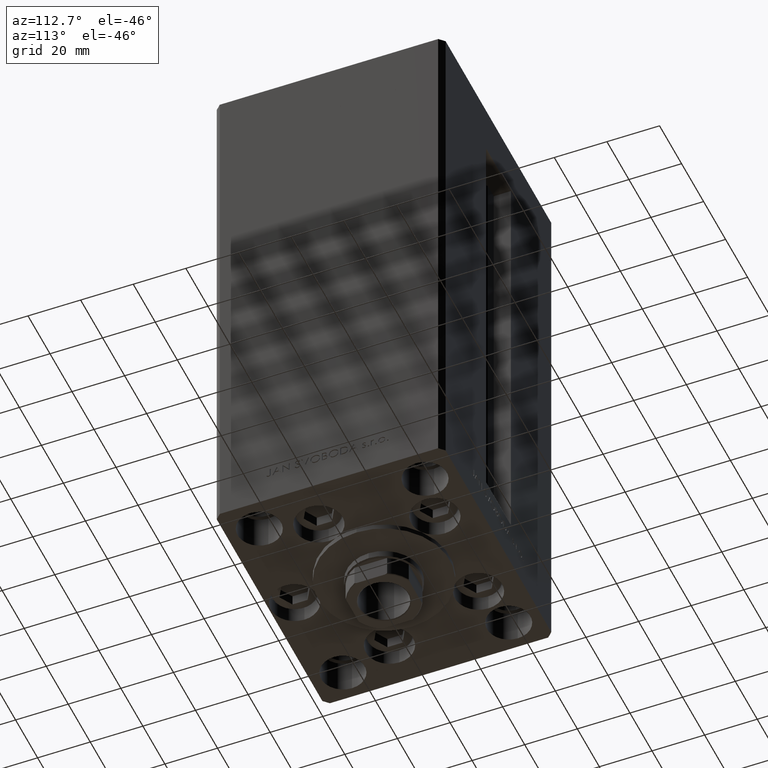
[diagram: clean part render]
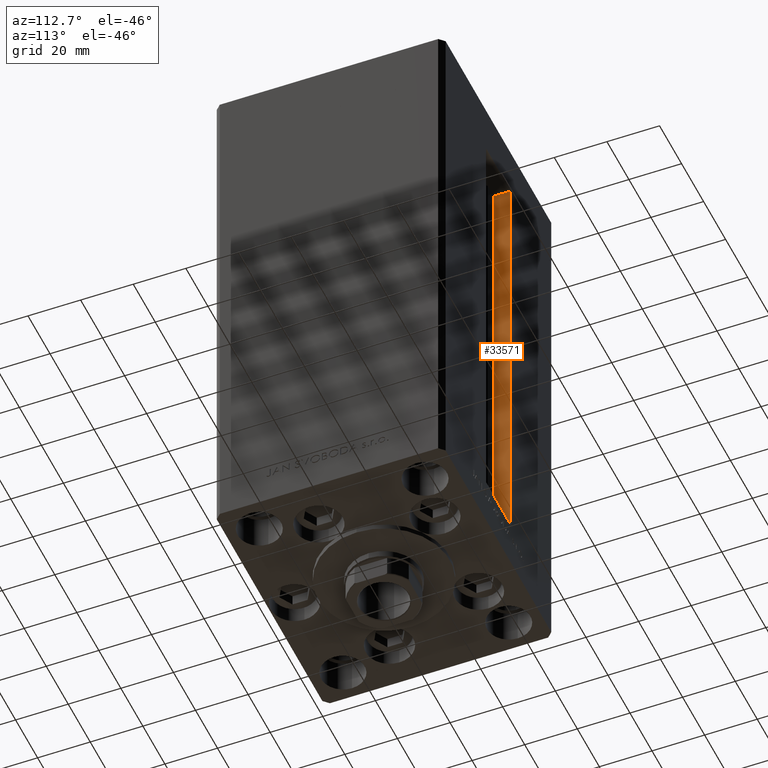
[diagram: same view with one face highlighted and labeled with its STEP entity id]
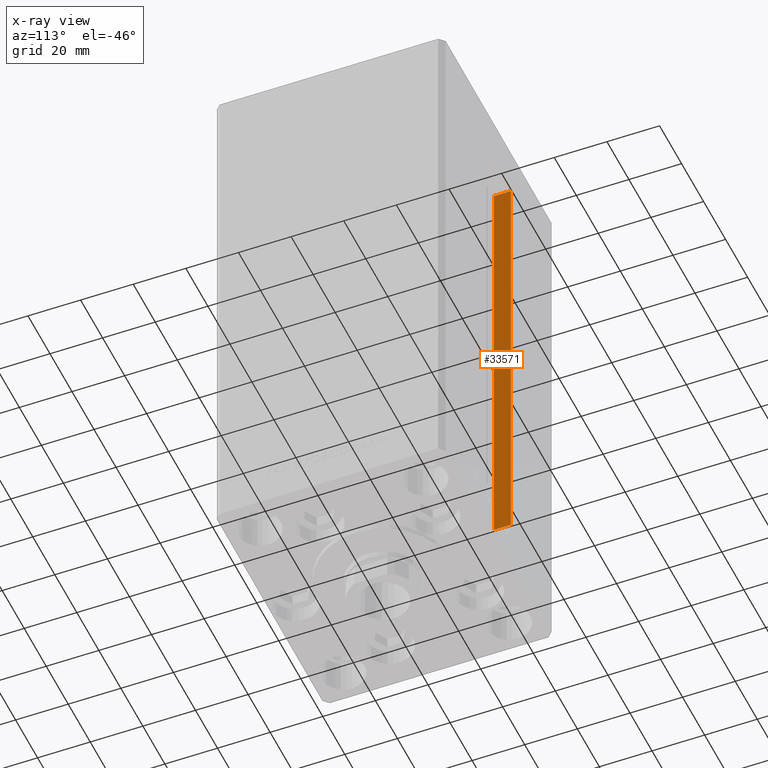
[diagram: x-ray of the same camera — body ghosted, the highlighted face saturated]
A machine part, auxiliary view. The second image highlights one B-rep face of the part: STEP entity #33571.
The next image is the same camera in x-ray: the body ghosted, the highlighted face saturated — about 0% of this face is hidden behind the body in this view.
In plain terms, the highlighted planar face has unit normal (-1, 0, 0).
Its self-contained STEP definition (entity closure, byte-faithful):
#324 = EDGE_CURVE ( 'NONE', #14315, #10342, #27190, .T. ) ;
#3522 = DIRECTION ( 'NONE',  ( 0.000000000000000000, 0.000000000000000000, 1.000000000000000000 ) ) ;
#4430 = EDGE_LOOP ( 'NONE', ( #24724, #4878, #26305, #28529 ) ) ;
#4878 = ORIENTED_EDGE ( 'NONE', *, *, #41995, .F. ) ;
#7042 = VECTOR ( 'NONE', #39192, 1000.000000000000000 ) ;
#8238 = DIRECTION ( 'NONE',  ( -1.000000000000000000, 0.000000000000000000, 0.000000000000000000 ) ) ;
#10342 = VERTEX_POINT ( 'NONE', #46484 ) ;
#10490 = CARTESIAN_POINT ( 'NONE',  ( -11.24999999999999822, 36.99999999999999289, 0.000000000000000000 ) ) ;
#12234 = CARTESIAN_POINT ( 'NONE',  ( -11.24999999999999822, 36.99999999999999289, 0.000000000000000000 ) ) ;
#14315 = VERTEX_POINT ( 'NONE', #26397 ) ;
#14429 = CARTESIAN_POINT ( 'NONE',  ( -11.24999999999999822, 43.50000000000000000, 0.000000000000000000 ) ) ;
#19286 = EDGE_CURVE ( 'NONE', #10342, #35992, #28006, .T. ) ;
#19603 = AXIS2_PLACEMENT_3D ( 'NONE', #38360, #8238, #3522 ) ;
#19909 = VECTOR ( 'NONE', #38373, 1000.000000000000000 ) ;
#20949 = EDGE_CURVE ( 'NONE', #27131, #35992, #40552, .T. ) ;
#23203 = FACE_OUTER_BOUND ( 'NONE', #4430, .T. ) ;
#24724 = ORIENTED_EDGE ( 'NONE', *, *, #324, .F. ) ;
#26305 = ORIENTED_EDGE ( 'NONE', *, *, #20949, .T. ) ;
#26397 = CARTESIAN_POINT ( 'NONE',  ( -11.24999999999999822, 36.99999999999999289, 0.000000000000000000 ) ) ;
#27131 = VERTEX_POINT ( 'NONE', #47175 ) ;
#27190 = LINE ( 'NONE', #12234, #19909 ) ;
#27732 = VECTOR ( 'NONE', #36576, 1000.000000000000000 ) ;
#28006 = LINE ( 'NONE', #46181, #7042 ) ;
#28529 = ORIENTED_EDGE ( 'NONE', *, *, #19286, .F. ) ;
#33387 = LINE ( 'NONE', #10490, #49230 ) ;
#33571 = ADVANCED_FACE ( 'NONE', ( #23203 ), #37618, .F. ) ;
#35992 = VERTEX_POINT ( 'NONE', #47064 ) ;
#36576 = DIRECTION ( 'NONE',  ( -0.000000000000000000, -0.000000000000000000, 1.000000000000000000 ) ) ;
#37618 = PLANE ( 'NONE',  #19603 ) ;
#38360 = CARTESIAN_POINT ( 'NONE',  ( -11.24999999999999822, 36.99999999999999289, 0.000000000000000000 ) ) ;
#38373 = DIRECTION ( 'NONE',  ( -0.000000000000000000, -0.000000000000000000, 1.000000000000000000 ) ) ;
#39192 = DIRECTION ( 'NONE',  ( 0.000000000000000000, 1.000000000000000000, 0.000000000000000000 ) ) ;
#40552 = LINE ( 'NONE', #14429, #27732 ) ;
#41075 = DIRECTION ( 'NONE',  ( -0.000000000000000000, -1.000000000000000000, -0.000000000000000000 ) ) ;
#41995 = EDGE_CURVE ( 'NONE', #27131, #14315, #33387, .T. ) ;
#46181 = CARTESIAN_POINT ( 'NONE',  ( -11.24999999999999822, 0.000000000000000000, 168.5000000000000000 ) ) ;
#46484 = CARTESIAN_POINT ( 'NONE',  ( -11.24999999999999822, 36.99999999999999289, 168.5000000000000000 ) ) ;
#47064 = CARTESIAN_POINT ( 'NONE',  ( -11.24999999999999822, 43.50000000000000000, 168.5000000000000000 ) ) ;
#47175 = CARTESIAN_POINT ( 'NONE',  ( -11.24999999999999822, 43.50000000000000000, 0.000000000000000000 ) ) ;
#49230 = VECTOR ( 'NONE', #41075, 1000.000000000000000 ) ;